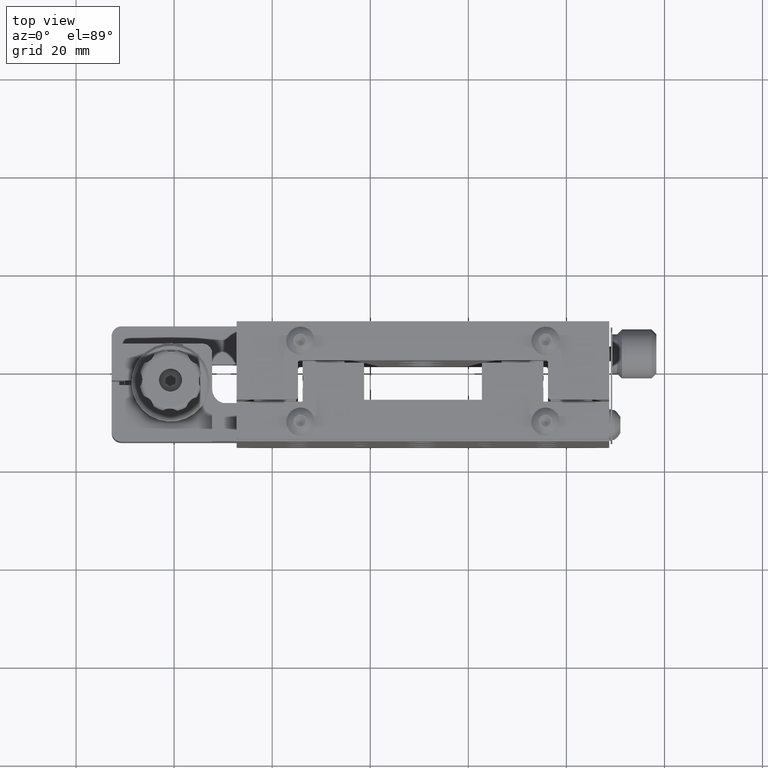
[diagram: clean part render]
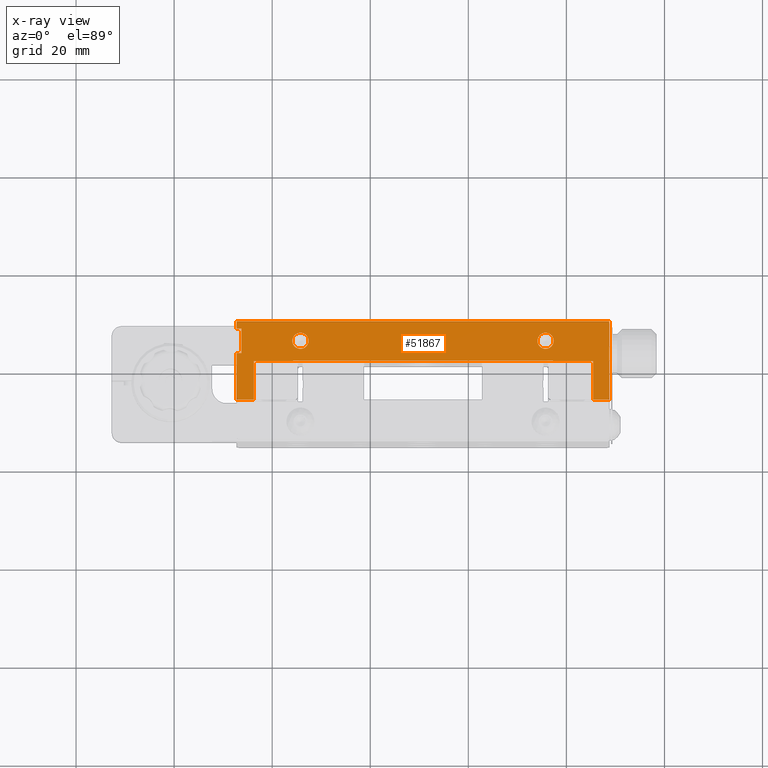
[diagram: x-ray — body ghosted, one internal face saturated and labeled with its STEP entity id]
A machine part, top view, then the same camera in x-ray: the body is ghosted and one INTERNAL B-rep face — a face not visible from any outside direction — is saturated and labeled: STEP entity #51867.
In plain terms, the highlighted planar face has unit normal (0, 0, 1).
Its self-contained STEP definition (entity closure, byte-faithful):
#354 = DIRECTION ( 'NONE',  ( -1.000000000000000000, 4.360860752901462400E-014, 6.106226635439225800E-016 ) ) ;
#355 = EDGE_CURVE ( 'NONE', #56746, #19166, #43770, .T. ) ;
#431 = EDGE_CURVE ( 'NONE', #53817, #17555, #52767, .T. ) ;
#637 = EDGE_CURVE ( 'NONE', #48699, #53947, #37512, .T. ) ;
#946 = CARTESIAN_POINT ( 'NONE',  ( -27.25019253063286900, 7.845865631785256900, 149.1000000000000500 ) ) ;
#1523 = CARTESIAN_POINT ( 'NONE',  ( 48.74980746936816400, -6.654134368209693800, 149.1000000000000500 ) ) ;
#1615 = LINE ( 'NONE', #41963, #50707 ) ;
#2693 = DIRECTION ( 'NONE',  ( -7.302039945017980700E-014, 1.000000000000000000, 7.524172382588799600E-016 ) ) ;
#3694 = ORIENTED_EDGE ( 'NONE', *, *, #19439, .F. ) ;
#3932 = PLANE ( 'NONE',  #44631 ) ;
#4250 = EDGE_CURVE ( 'NONE', #33928, #48699, #41196, .T. ) ;
#4277 = ORIENTED_EDGE ( 'NONE', *, *, #431, .F. ) ;
#4738 = CARTESIAN_POINT ( 'NONE',  ( -23.75019253063185300, -6.654134368214384300, 149.1000000000000500 ) ) ;
#5091 = ORIENTED_EDGE ( 'NONE', *, *, #45538, .F. ) ;
#5485 = CARTESIAN_POINT ( 'NONE',  ( 37.24980746936761000, 1.345865631789630900, 149.1000000000000500 ) ) ;
#6112 = DIRECTION ( 'NONE',  ( 1.000000000000000000, 7.134708185144444200E-014, -6.106226635438361000E-016 ) ) ;
#6225 = AXIS2_PLACEMENT_3D ( 'NONE', #55453, #28848, #29394 ) ;
#6366 = VECTOR ( 'NONE', #54910, 1000.000000000000000 ) ;
#6513 = LINE ( 'NONE', #33884, #57091 ) ;
#7280 = EDGE_CURVE ( 'NONE', #17555, #53817, #27424, .T. ) ;
#7355 = ORIENTED_EDGE ( 'NONE', *, *, #9858, .F. ) ;
#7780 = DIRECTION ( 'NONE',  ( 7.302039945017980700E-014, -1.000000000000000000, -7.524172382588799600E-016 ) ) ;
#8261 = CARTESIAN_POINT ( 'NONE',  ( -15.75019253063240900, 1.245865631785698900, 149.1000000000000500 ) ) ;
#8374 = VECTOR ( 'NONE', #8451, 1000.000000000000000 ) ;
#8451 = DIRECTION ( 'NONE',  ( 7.302039945017980700E-014, -1.000000000000000000, -7.524172382588799600E-016 ) ) ;
#8621 = LINE ( 'NONE', #25810, #46027 ) ;
#9241 = LINE ( 'NONE', #31058, #20382 ) ;
#9347 = LINE ( 'NONE', #44405, #41207 ) ;
#9858 = EDGE_CURVE ( 'NONE', #43433, #10558, #9241, .T. ) ;
#10558 = VERTEX_POINT ( 'NONE', #39791 ) ;
#10652 = LINE ( 'NONE', #35461, #42468 ) ;
#12271 = VERTEX_POINT ( 'NONE', #12541 ) ;
#12354 = VERTEX_POINT ( 'NONE', #14291 ) ;
#12541 = CARTESIAN_POINT ( 'NONE',  ( -26.25019253063249600, 2.845865631784943300, 149.1000000000000500 ) ) ;
#12873 = CARTESIAN_POINT ( 'NONE',  ( -27.25019253063305100, 9.345865631784999300, 149.1000000000000500 ) ) ;
#13405 = DIRECTION ( 'NONE',  ( -7.302039945017980700E-014, 1.000000000000000000, 7.524172382588799600E-016 ) ) ;
#13551 = CARTESIAN_POINT ( 'NONE',  ( 45.44980746936759200, 1.245865631790046100, 149.1000000000000500 ) ) ;
#13770 = DIRECTION ( 'NONE',  ( -1.000000000000000000, -7.108523679846681000E-014, 6.106226635438363900E-016 ) ) ;
#13893 = LINE ( 'NONE', #35607, #47124 ) ;
#13896 = CARTESIAN_POINT ( 'NONE',  ( -23.75019253063242200, 1.245865631785123100, 149.1000000000000500 ) ) ;
#14291 = CARTESIAN_POINT ( 'NONE',  ( 45.44980746936816000, -6.654134368209560600, 149.1000000000000500 ) ) ;
#15351 = LINE ( 'NONE', #13551, #24359 ) ;
#15443 = CARTESIAN_POINT ( 'NONE',  ( 37.24980746936762400, 1.245865631789458100, 149.1000000000000500 ) ) ;
#15511 = DIRECTION ( 'NONE',  ( -7.302039945017980700E-014, 1.000000000000000000, 7.524172382588799600E-016 ) ) ;
#15650 = VERTEX_POINT ( 'NONE', #22281 ) ;
#15698 = CARTESIAN_POINT ( 'NONE',  ( -27.25019253063286900, 7.845865631785256900, 149.1000000000000500 ) ) ;
#17539 = CARTESIAN_POINT ( 'NONE',  ( -23.75019253063185300, -6.654134368214384300, 149.1000000000000500 ) ) ;
#17555 = VERTEX_POINT ( 'NONE', #56094 ) ;
#18025 = CIRCLE ( 'NONE', #26071, 1.649999999999991700 ) ;
#19166 = VERTEX_POINT ( 'NONE', #46828 ) ;
#19293 = EDGE_CURVE ( 'NONE', #10558, #42254, #55521, .T. ) ;
#19366 = LINE ( 'NONE', #29962, #33158 ) ;
#19439 = EDGE_CURVE ( 'NONE', #50007, #23756, #15351, .T. ) ;
#19940 = EDGE_CURVE ( 'NONE', #22885, #12354, #13893, .T. ) ;
#20235 = AXIS2_PLACEMENT_3D ( 'NONE', #48743, #53200, #52446 ) ;
#20382 = VECTOR ( 'NONE', #13770, 1000.000000000000000 ) ;
#21059 = DIRECTION ( 'NONE',  ( 1.000000000000000000, 7.134708185144444200E-014, -6.106226635438361000E-016 ) ) ;
#21436 = VERTEX_POINT ( 'NONE', #36468 ) ;
#21864 = DIRECTION ( 'NONE',  ( -7.302039945017980700E-014, 1.000000000000000000, 7.524172382588799600E-016 ) ) ;
#21981 = EDGE_CURVE ( 'NONE', #27275, #21436, #44878, .T. ) ;
#22143 = DIRECTION ( 'NONE',  ( -5.551115123126275700E-016, 6.840156711443963800E-016, 1.000000000000000000 ) ) ;
#22281 = CARTESIAN_POINT ( 'NONE',  ( -27.25019253063253900, 2.845865631784889600, 149.1000000000000500 ) ) ;
#22885 = VERTEX_POINT ( 'NONE', #1523 ) ;
#23214 = EDGE_LOOP ( 'NONE', ( #35242, #43919, #47571, #55913, #45724, #45380, #47658, #55766, #7355, #5091, #3694, #50116, #48069, #43405, #38665, #55402 ) ) ;
#23493 = FACE_OUTER_BOUND ( 'NONE', #23214, .T. ) ;
#23756 = VERTEX_POINT ( 'NONE', #53289 ) ;
#24129 = EDGE_CURVE ( 'NONE', #21436, #27275, #18025, .T. ) ;
#24359 = VECTOR ( 'NONE', #53595, 1000.000000000000000 ) ;
#24585 = EDGE_CURVE ( 'NONE', #42254, #33928, #25572, .T. ) ;
#25572 = LINE ( 'NONE', #13896, #48382 ) ;
#25663 = EDGE_CURVE ( 'NONE', #19166, #55682, #30261, .T. ) ;
#25810 = CARTESIAN_POINT ( 'NONE',  ( -27.25019253063286900, 7.845865631785256900, 149.1000000000000500 ) ) ;
#26071 = AXIS2_PLACEMENT_3D ( 'NONE', #26381, #22143, #53036 ) ;
#26381 = CARTESIAN_POINT ( 'NONE',  ( -14.25019253063275600, 5.345865631785887500, 149.1000000000000500 ) ) ;
#26610 = DIRECTION ( 'NONE',  ( 1.000000000000000000, 7.149163416146877300E-014, 0.0000000000000000000 ) ) ;
#26783 = VECTOR ( 'NONE', #44372, 1000.000000000000000 ) ;
#27275 = VERTEX_POINT ( 'NONE', #43501 ) ;
#27424 = CIRCLE ( 'NONE', #56773, 1.649999999999991700 ) ;
#27654 = EDGE_CURVE ( 'NONE', #55682, #22885, #19366, .T. ) ;
#28848 = DIRECTION ( 'NONE',  ( -5.551115123126275700E-016, 6.840156711443963800E-016, 1.000000000000000000 ) ) ;
#29006 = CARTESIAN_POINT ( 'NONE',  ( 35.74980746936729800, 5.345865631789460600, 149.1000000000000500 ) ) ;
#29073 = CARTESIAN_POINT ( 'NONE',  ( 45.44980746936759200, 1.245865631790046100, 149.1000000000000500 ) ) ;
#29394 = DIRECTION ( 'NONE',  ( 1.000000000000000000, 7.149163416146877300E-014, 0.0000000000000000000 ) ) ;
#29962 = CARTESIAN_POINT ( 'NONE',  ( 48.74980746936693500, 9.345865631790401200, 149.1000000000000500 ) ) ;
#30261 = LINE ( 'NONE', #12873, #26783 ) ;
#30337 = CARTESIAN_POINT ( 'NONE',  ( -26.25019253063285500, 7.845865631785308400, 149.1000000000000500 ) ) ;
#30747 = LINE ( 'NONE', #15443, #6366 ) ;
#30883 = EDGE_CURVE ( 'NONE', #50104, #56746, #8621, .T. ) ;
#31058 = CARTESIAN_POINT ( 'NONE',  ( -15.75019253063242000, 1.345865631785873500, 149.1000000000000500 ) ) ;
#31180 = DIRECTION ( 'NONE',  ( -1.000000000000000000, -7.113024141694734100E-014, 6.106226635438362900E-016 ) ) ;
#31202 = EDGE_CURVE ( 'NONE', #12354, #50007, #6513, .T. ) ;
#31586 = CARTESIAN_POINT ( 'NONE',  ( -23.75019253063185300, -6.654134368214384300, 149.1000000000000500 ) ) ;
#31821 = FACE_BOUND ( 'NONE', #40643, .T. ) ;
#31931 = EDGE_CURVE ( 'NONE', #15650, #12271, #1615, .T. ) ;
#31944 = DIRECTION ( 'NONE',  ( -1.000000000000000000, -7.110216058067996700E-014, 6.106226635438363900E-016 ) ) ;
#32049 = VECTOR ( 'NONE', #15511, 1000.000000000000000 ) ;
#33158 = VECTOR ( 'NONE', #7780, 1000.000000000000000 ) ;
#33884 = CARTESIAN_POINT ( 'NONE',  ( 45.44980746936816000, -6.654134368209560600, 149.1000000000000500 ) ) ;
#33928 = VERTEX_POINT ( 'NONE', #45008 ) ;
#34157 = EDGE_CURVE ( 'NONE', #12271, #50104, #10652, .T. ) ;
#34608 = CARTESIAN_POINT ( 'NONE',  ( -26.25019253063285500, 7.845865631785310200, 149.1000000000000500 ) ) ;
#34717 = DIRECTION ( 'NONE',  ( 6.106226635437872900E-016, 6.840156711444796100E-016, 1.000000000000000000 ) ) ;
#35242 = ORIENTED_EDGE ( 'NONE', *, *, #30883, .F. ) ;
#35461 = CARTESIAN_POINT ( 'NONE',  ( -26.25019253063249600, 2.845865631784943300, 149.1000000000000500 ) ) ;
#35607 = CARTESIAN_POINT ( 'NONE',  ( 45.44980746936816000, -6.654134368209560600, 149.1000000000000500 ) ) ;
#35688 = EDGE_LOOP ( 'NONE', ( #43947, #4277 ) ) ;
#36116 = VECTOR ( 'NONE', #31944, 1000.000000000000000 ) ;
#36468 = CARTESIAN_POINT ( 'NONE',  ( -12.60019253063276200, 5.345865631786005600, 149.1000000000000500 ) ) ;
#36925 = ORIENTED_EDGE ( 'NONE', *, *, #24129, .F. ) ;
#37512 = LINE ( 'NONE', #31586, #36116 ) ;
#37562 = CARTESIAN_POINT ( 'NONE',  ( 34.09980746936730600, 5.345865631789341600, 149.1000000000000500 ) ) ;
#38642 = EDGE_CURVE ( 'NONE', #53947, #15650, #9347, .T. ) ;
#38665 = ORIENTED_EDGE ( 'NONE', *, *, #25663, .F. ) ;
#39791 = CARTESIAN_POINT ( 'NONE',  ( -15.75019253063242000, 1.345865631785873500, 149.1000000000000500 ) ) ;
#40133 = DIRECTION ( 'NONE',  ( 7.302039945017980700E-014, -1.000000000000000000, -7.524172382588799600E-016 ) ) ;
#40162 = CARTESIAN_POINT ( 'NONE',  ( 48.74980746936693500, 9.345865631790401200, 149.1000000000000500 ) ) ;
#40643 = EDGE_LOOP ( 'NONE', ( #36925, #43920 ) ) ;
#41196 = LINE ( 'NONE', #17539, #48089 ) ;
#41207 = VECTOR ( 'NONE', #21864, 1000.000000000000000 ) ;
#41963 = CARTESIAN_POINT ( 'NONE',  ( -27.25019253063253900, 2.845865631784889600, 149.1000000000000500 ) ) ;
#42254 = VERTEX_POINT ( 'NONE', #51223 ) ;
#42468 = VECTOR ( 'NONE', #13405, 1000.000000000000000 ) ;
#43405 = ORIENTED_EDGE ( 'NONE', *, *, #27654, .F. ) ;
#43433 = VERTEX_POINT ( 'NONE', #5485 ) ;
#43501 = CARTESIAN_POINT ( 'NONE',  ( -15.90019253063274700, 5.345865631785767600, 149.1000000000000500 ) ) ;
#43770 = LINE ( 'NONE', #15698, #32049 ) ;
#43919 = ORIENTED_EDGE ( 'NONE', *, *, #34157, .F. ) ;
#43920 = ORIENTED_EDGE ( 'NONE', *, *, #21981, .F. ) ;
#43947 = ORIENTED_EDGE ( 'NONE', *, *, #7280, .F. ) ;
#44372 = DIRECTION ( 'NONE',  ( 1.000000000000000000, 7.121012999807785100E-014, -6.106226635438362900E-016 ) ) ;
#44405 = CARTESIAN_POINT ( 'NONE',  ( -27.25019253063185000, -6.654134368214635700, 149.1000000000000500 ) ) ;
#44631 = AXIS2_PLACEMENT_3D ( 'NONE', #30337, #34717, #21059 ) ;
#44878 = CIRCLE ( 'NONE', #6225, 1.649999999999991700 ) ;
#45008 = CARTESIAN_POINT ( 'NONE',  ( -23.75019253063242200, 1.245865631785123100, 149.1000000000000500 ) ) ;
#45380 = ORIENTED_EDGE ( 'NONE', *, *, #4250, .F. ) ;
#45538 = EDGE_CURVE ( 'NONE', #23756, #43433, #30747, .T. ) ;
#45724 = ORIENTED_EDGE ( 'NONE', *, *, #637, .F. ) ;
#46027 = VECTOR ( 'NONE', #56739, 1000.000000000000000 ) ;
#46828 = CARTESIAN_POINT ( 'NONE',  ( -27.25019253063305100, 9.345865631784999300, 149.1000000000000500 ) ) ;
#47124 = VECTOR ( 'NONE', #354, 1000.000000000000000 ) ;
#47193 = CARTESIAN_POINT ( 'NONE',  ( -27.25019253063185000, -6.654134368214635700, 149.1000000000000500 ) ) ;
#47571 = ORIENTED_EDGE ( 'NONE', *, *, #31931, .F. ) ;
#47658 = ORIENTED_EDGE ( 'NONE', *, *, #24585, .F. ) ;
#48069 = ORIENTED_EDGE ( 'NONE', *, *, #19940, .F. ) ;
#48089 = VECTOR ( 'NONE', #40133, 1000.000000000000000 ) ;
#48382 = VECTOR ( 'NONE', #31180, 1000.000000000000000 ) ;
#48699 = VERTEX_POINT ( 'NONE', #4738 ) ;
#48743 = CARTESIAN_POINT ( 'NONE',  ( 35.74980746936729800, 5.345865631789460600, 149.1000000000000500 ) ) ;
#50007 = VERTEX_POINT ( 'NONE', #29073 ) ;
#50104 = VERTEX_POINT ( 'NONE', #34608 ) ;
#50116 = ORIENTED_EDGE ( 'NONE', *, *, #31202, .F. ) ;
#50707 = VECTOR ( 'NONE', #6112, 1000.000000000000000 ) ;
#51223 = CARTESIAN_POINT ( 'NONE',  ( -15.75019253063240900, 1.245865631785698900, 149.1000000000000500 ) ) ;
#51867 = ADVANCED_FACE ( 'NONE', ( #31821, #55320, #23493 ), #3932, .T. ) ;
#52446 = DIRECTION ( 'NONE',  ( 1.000000000000000000, 7.149163416146877300E-014, 0.0000000000000000000 ) ) ;
#52767 = CIRCLE ( 'NONE', #20235, 1.649999999999991700 ) ;
#53036 = DIRECTION ( 'NONE',  ( 1.000000000000000000, 7.149163416146877300E-014, 0.0000000000000000000 ) ) ;
#53200 = DIRECTION ( 'NONE',  ( -5.551115123126275700E-016, 6.840156711443963800E-016, 1.000000000000000000 ) ) ;
#53289 = CARTESIAN_POINT ( 'NONE',  ( 37.24980746936762400, 1.245865631789458100, 149.1000000000000500 ) ) ;
#53595 = DIRECTION ( 'NONE',  ( -1.000000000000000000, -7.092397856462082400E-014, 6.106226635438364900E-016 ) ) ;
#53817 = VERTEX_POINT ( 'NONE', #37562 ) ;
#53947 = VERTEX_POINT ( 'NONE', #47193 ) ;
#54910 = DIRECTION ( 'NONE',  ( -7.302039945017980700E-014, 1.000000000000000000, 7.524172382588799600E-016 ) ) ;
#55320 = FACE_BOUND ( 'NONE', #35688, .T. ) ;
#55402 = ORIENTED_EDGE ( 'NONE', *, *, #355, .F. ) ;
#55453 = CARTESIAN_POINT ( 'NONE',  ( -14.25019253063275600, 5.345865631785887500, 149.1000000000000500 ) ) ;
#55521 = LINE ( 'NONE', #8261, #8374 ) ;
#55682 = VERTEX_POINT ( 'NONE', #40162 ) ;
#55766 = ORIENTED_EDGE ( 'NONE', *, *, #19293, .F. ) ;
#55913 = ORIENTED_EDGE ( 'NONE', *, *, #38642, .F. ) ;
#56094 = CARTESIAN_POINT ( 'NONE',  ( 37.39980746936728900, 5.345865631789578700, 149.1000000000000500 ) ) ;
#56739 = DIRECTION ( 'NONE',  ( -1.000000000000000000, -7.134708185144444200E-014, 6.106226635438361000E-016 ) ) ;
#56746 = VERTEX_POINT ( 'NONE', #946 ) ;
#56773 = AXIS2_PLACEMENT_3D ( 'NONE', #29006, #56952, #26610 ) ;
#56952 = DIRECTION ( 'NONE',  ( -5.551115123126275700E-016, 6.840156711443963800E-016, 1.000000000000000000 ) ) ;
#57091 = VECTOR ( 'NONE', #2693, 1000.000000000000000 ) ;